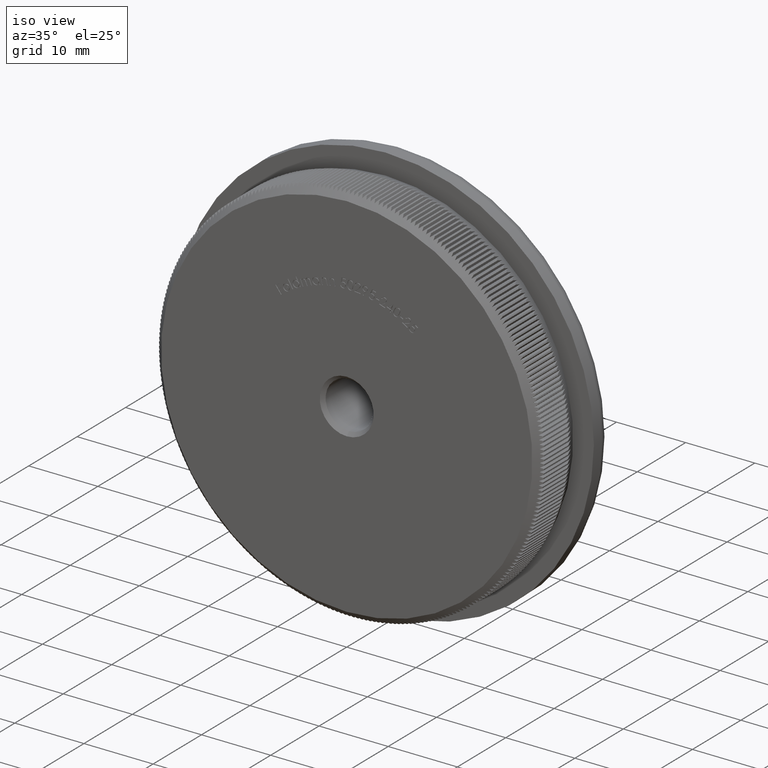
[diagram: clean part render]
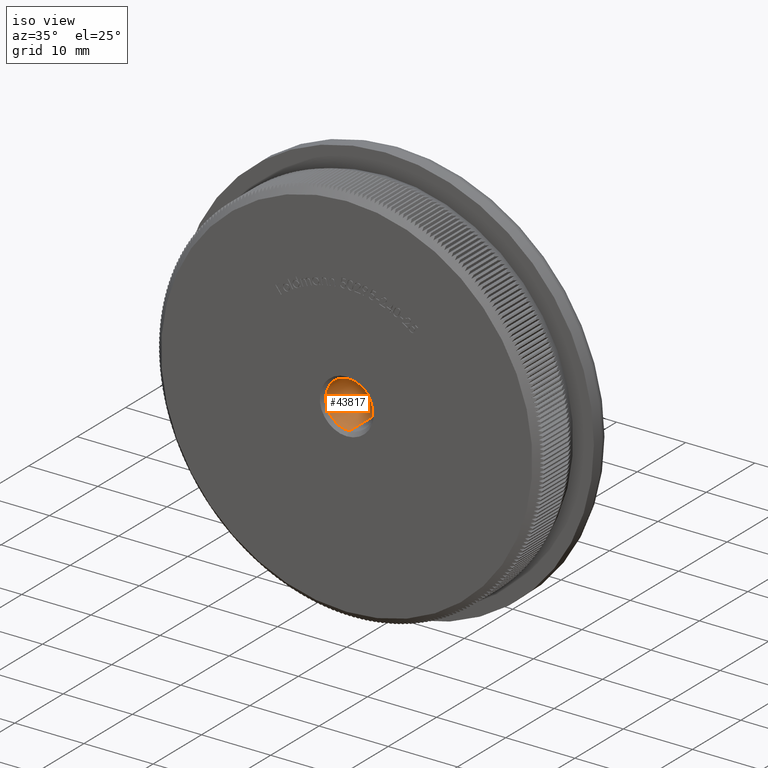
[diagram: same view with one face highlighted and labeled with its STEP entity id]
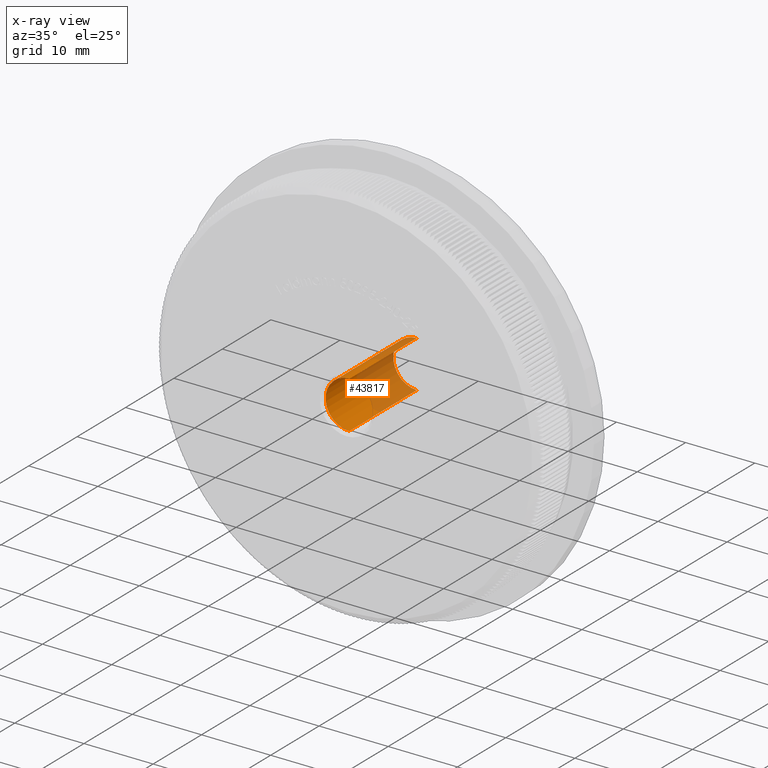
[diagram: x-ray of the same camera — body ghosted, the highlighted face saturated]
A machine part, iso view. The second image highlights one B-rep face of the part: STEP entity #43817.
The next image is the same camera in x-ray: the body ghosted, the highlighted face saturated — about 50% of this face is hidden behind the body in this view.
In plain terms, the highlighted cylindrical surface (edge-blend (fillet) strip) has radius 3.4 mm, axis along (-0, -1, -0).
Its self-contained STEP definition (entity closure, byte-faithful):
#2907 = LINE ( 'NONE', #4389, #29877 ) ;
#4389 = CARTESIAN_POINT ( 'NONE',  ( 4.163799117100995600E-016, 0.0000000000000000000, 3.399999999999995500 ) ) ;
#4904 = FACE_OUTER_BOUND ( 'NONE', #21272, .T. ) ;
#6760 = CARTESIAN_POINT ( 'NONE',  ( 0.0000000000000000000, 0.0000000000000000000, -3.399999999999995500 ) ) ;
#9627 = DIRECTION ( 'NONE',  ( 0.0000000000000000000, 1.000000000000000000, 0.0000000000000000000 ) ) ;
#9919 = CYLINDRICAL_SURFACE ( 'NONE', #40602, 3.399999999999995500 ) ;
#11516 = DIRECTION ( 'NONE',  ( -0.0000000000000000000, -1.000000000000000000, -0.0000000000000000000 ) ) ;
#13401 = DIRECTION ( 'NONE',  ( -0.0000000000000000000, -1.000000000000000000, -0.0000000000000000000 ) ) ;
#14723 = CARTESIAN_POINT ( 'NONE',  ( 4.163799117100995600E-016, 14.47426544225190200, 3.399999999999995500 ) ) ;
#15257 = ORIENTED_EDGE ( 'NONE', *, *, #20017, .T. ) ;
#15347 = CARTESIAN_POINT ( 'NONE',  ( 4.163799117100995600E-016, 0.4999999999999822400, 3.399999999999995500 ) ) ;
#16202 = CIRCLE ( 'NONE', #27473, 3.399999999999995500 ) ;
#17549 = EDGE_CURVE ( 'NONE', #44259, #42898, #30543, .T. ) ;
#18607 = EDGE_CURVE ( 'NONE', #32422, #22160, #16202, .T. ) ;
#18619 = VECTOR ( 'NONE', #13401, 1000.000000000000000 ) ;
#19666 = DIRECTION ( 'NONE',  ( 0.0000000000000000000, -1.000000000000000000, 0.0000000000000000000 ) ) ;
#20017 = EDGE_CURVE ( 'NONE', #42898, #32422, #2907, .T. ) ;
#20668 = AXIS2_PLACEMENT_3D ( 'NONE', #34532, #9627, #27312 ) ;
#21272 = EDGE_LOOP ( 'NONE', ( #26197, #15257, #36966, #38365 ) ) ;
#21541 = CARTESIAN_POINT ( 'NONE',  ( 0.0000000000000000000, 0.0000000000000000000, 0.0000000000000000000 ) ) ;
#21694 = DIRECTION ( 'NONE',  ( -0.0000000000000000000, -1.000000000000000000, -0.0000000000000000000 ) ) ;
#22160 = VERTEX_POINT ( 'NONE', #34469 ) ;
#25555 = EDGE_CURVE ( 'NONE', #44259, #22160, #27993, .T. ) ;
#26197 = ORIENTED_EDGE ( 'NONE', *, *, #17549, .T. ) ;
#27312 = DIRECTION ( 'NONE',  ( 0.0000000000000000000, 0.0000000000000000000, 1.000000000000000000 ) ) ;
#27473 = AXIS2_PLACEMENT_3D ( 'NONE', #37055, #19666, #33989 ) ;
#27993 = LINE ( 'NONE', #6760, #18619 ) ;
#29877 = VECTOR ( 'NONE', #11516, 1000.000000000000000 ) ;
#30543 = CIRCLE ( 'NONE', #20668, 3.399999999999995500 ) ;
#32422 = VERTEX_POINT ( 'NONE', #15347 ) ;
#33989 = DIRECTION ( 'NONE',  ( 0.0000000000000000000, 0.0000000000000000000, -1.000000000000000000 ) ) ;
#34469 = CARTESIAN_POINT ( 'NONE',  ( 0.0000000000000000000, 0.4999999999999822400, -3.399999999999995500 ) ) ;
#34532 = CARTESIAN_POINT ( 'NONE',  ( 0.0000000000000000000, 14.47426544225190200, 0.0000000000000000000 ) ) ;
#36966 = ORIENTED_EDGE ( 'NONE', *, *, #18607, .T. ) ;
#37055 = CARTESIAN_POINT ( 'NONE',  ( 0.0000000000000000000, 0.4999999999999822400, 0.0000000000000000000 ) ) ;
#38365 = ORIENTED_EDGE ( 'NONE', *, *, #25555, .F. ) ;
#38596 = CARTESIAN_POINT ( 'NONE',  ( 0.0000000000000000000, 14.47426544225190200, -3.399999999999995500 ) ) ;
#39075 = DIRECTION ( 'NONE',  ( 0.0000000000000000000, 0.0000000000000000000, -1.000000000000000000 ) ) ;
#40602 = AXIS2_PLACEMENT_3D ( 'NONE', #21541, #21694, #39075 ) ;
#42898 = VERTEX_POINT ( 'NONE', #14723 ) ;
#43817 = ADVANCED_FACE ( 'NONE', ( #4904 ), #9919, .F. ) ;
#44259 = VERTEX_POINT ( 'NONE', #38596 ) ;